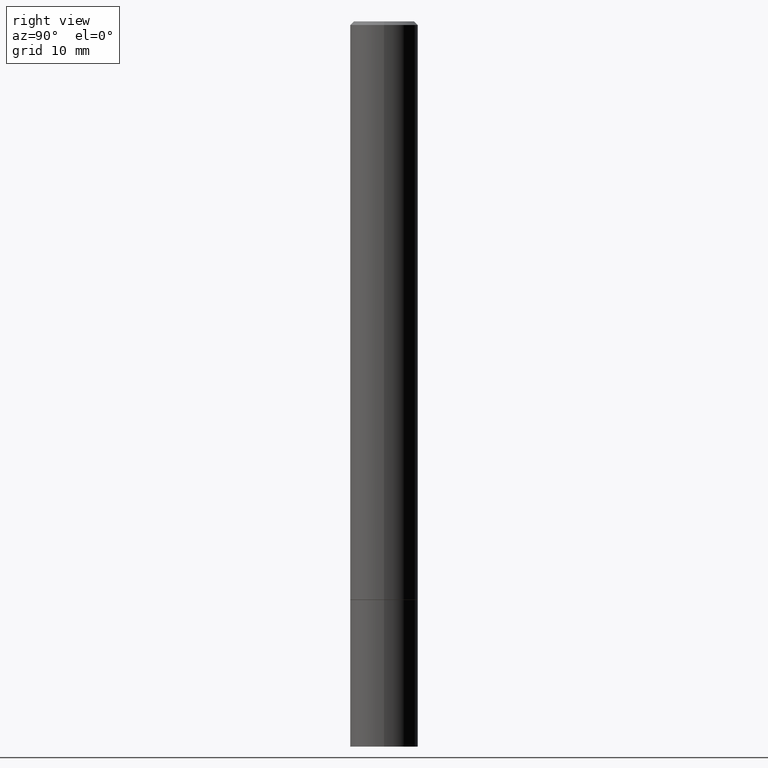
[diagram: clean part render]
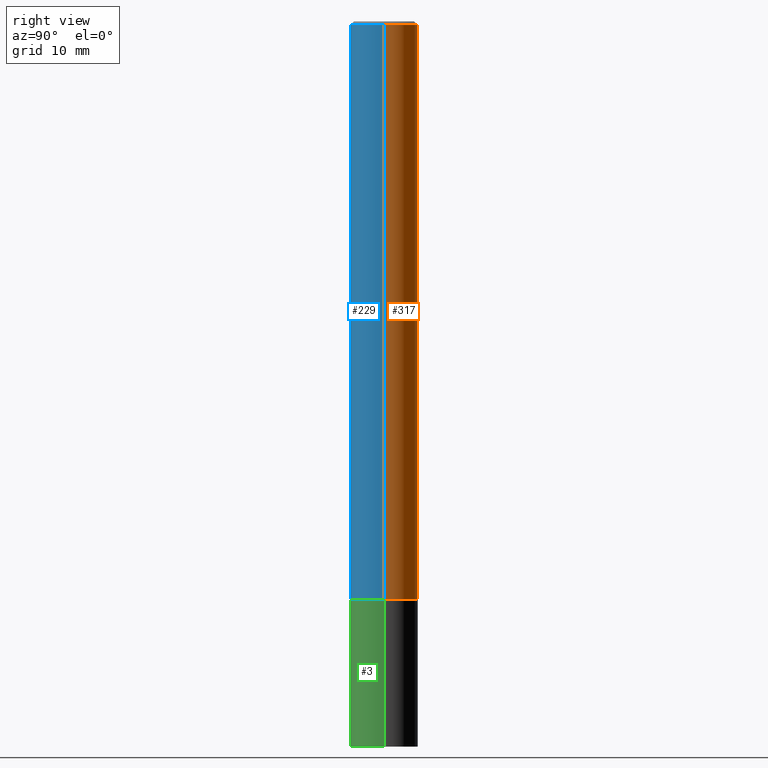
[diagram: same view with three faces highlighted in distinct colors, each labeled with its STEP entity id]
A machine part, right view with three faces highlighted in distinct colors.
Their STEP definitions:

[orange] entity #317 — the highlighted cylindrical surface (edge-blend (fillet) strip) has radius 4.7625 mm, axis along (-0, 0, 1).
#2 = DIRECTION ( 'NONE',  ( -2.445468806185136597E-29, 3.491481338843145583E-15, 1.000000000000000000 ) ) ;
#11 = ORIENTED_EDGE ( 'NONE', *, *, #357, .F. ) ;
#15 = CIRCLE ( 'NONE', #332, 0.1874999999999996669 ) ;
#30 = ORIENTED_EDGE ( 'NONE', *, *, #224, .T. ) ;
#45 = VECTOR ( 'NONE', #324, 39.37007874015748143 ) ;
#59 = ORIENTED_EDGE ( 'NONE', *, *, #185, .F. ) ;
#90 = LINE ( 'NONE', #210, #45 ) ;
#95 = LINE ( 'NONE', #272, #296 ) ;
#98 = DIRECTION ( 'NONE',  ( 1.000000000000000000, -6.982962677686261189E-15, 0.000000000000000000 ) ) ;
#125 = ORIENTED_EDGE ( 'NONE', *, *, #254, .T. ) ;
#126 = FACE_OUTER_BOUND ( 'NONE', #177, .T. ) ;
#155 = VERTEX_POINT ( 'NONE', #216 ) ;
#169 = CARTESIAN_POINT ( 'NONE',  ( -0.1875000000000000278, -4.269814178623634829E-15, -3.188999999999999613 ) ) ;
#171 = DIRECTION ( 'NONE',  ( -2.445468806185136597E-29, 3.491481338843145583E-15, 1.000000000000000000 ) ) ;
#177 = EDGE_LOOP ( 'NONE', ( #125, #30, #59, #11 ) ) ;
#185 = EDGE_CURVE ( 'NONE', #275, #309, #15, .T. ) ;
#186 = AXIS2_PLACEMENT_3D ( 'NONE', #336, #2, #331 ) ;
#189 = CARTESIAN_POINT ( 'NONE',  ( -0.1874999999999996669, 1.239475875289309738E-15, -0.02000000000000004205 ) ) ;
#210 = CARTESIAN_POINT ( 'NONE',  ( -0.1874999999999998335, 1.332267629550186665E-15, -9.223003294227939583E-30 ) ) ;
#216 = CARTESIAN_POINT ( 'NONE',  ( 0.1875000000000000278, -1.244363949163696495E-14, -3.188999999999999613 ) ) ;
#218 = DIRECTION ( 'NONE',  ( -2.445468806185136877E-29, 3.491481338843145188E-15, 1.000000000000000000 ) ) ;
#219 = CARTESIAN_POINT ( 'NONE',  ( 0.1874999999999996669, -1.356173001359023100E-15, -0.02000000000000004205 ) ) ;
#220 = VERTEX_POINT ( 'NONE', #169 ) ;
#224 = EDGE_CURVE ( 'NONE', #220, #309, #90, .T. ) ;
#252 = AXIS2_PLACEMENT_3D ( 'NONE', #365, #308, #98 ) ;
#254 = EDGE_CURVE ( 'NONE', #155, #220, #322, .T. ) ;
#272 = CARTESIAN_POINT ( 'NONE',  ( 0.1874999999999998335, -1.309305502066173825E-15, 9.142831454617371204E-30 ) ) ;
#275 = VERTEX_POINT ( 'NONE', #219 ) ;
#296 = VECTOR ( 'NONE', #218, 39.37007874015748143 ) ;
#308 = DIRECTION ( 'NONE',  ( -2.445468806185136597E-29, 3.491481338843145583E-15, 1.000000000000000000 ) ) ;
#309 = VERTEX_POINT ( 'NONE', #189 ) ;
#317 = ADVANCED_FACE ( 'NONE', ( #126 ), #363, .T. ) ;
#322 = CIRCLE ( 'NONE', #252, 0.1875000000000000278 ) ;
#324 = DIRECTION ( 'NONE',  ( -2.445468806185136877E-29, 3.491481338843145188E-15, 1.000000000000000000 ) ) ;
#331 = DIRECTION ( 'NONE',  ( 1.000000000000000000, -6.982962677686266711E-15, 4.876176775795935793E-29 ) ) ;
#332 = AXIS2_PLACEMENT_3D ( 'NONE', #356, #171, #353 ) ;
#336 = CARTESIAN_POINT ( 'NONE',  ( 0.000000000000000000, 0.000000000000000000, 0.000000000000000000 ) ) ;
#353 = DIRECTION ( 'NONE',  ( 1.000000000000000000, -6.982962677686267499E-15, 0.000000000000000000 ) ) ;
#356 = CARTESIAN_POINT ( 'NONE',  ( 4.890937612370283668E-31, -6.982962677686305168E-17, -0.02000000000000004205 ) ) ;
#357 = EDGE_CURVE ( 'NONE', #155, #275, #95, .T. ) ;
#363 = CYLINDRICAL_SURFACE ( 'NONE', #186, 0.1874999999999998335 ) ;
#365 = CARTESIAN_POINT ( 'NONE',  ( 7.798600022924400186E-29, -1.113433398957079152E-14, -3.188999999999999613 ) ) ;

[blue] entity #229 — the highlighted cylindrical surface (edge-blend (fillet) strip) has radius 4.7625 mm, axis along (-0, 0, 1).
#20 = AXIS2_PLACEMENT_3D ( 'NONE', #300, #88, #47 ) ;
#25 = CARTESIAN_POINT ( 'NONE',  ( 7.798600022924400186E-29, -1.113433398957079152E-14, -3.188999999999999613 ) ) ;
#29 = AXIS2_PLACEMENT_3D ( 'NONE', #25, #122, #273 ) ;
#36 = AXIS2_PLACEMENT_3D ( 'NONE', #123, #302, #305 ) ;
#45 = VECTOR ( 'NONE', #324, 39.37007874015748143 ) ;
#47 = DIRECTION ( 'NONE',  ( 1.000000000000000000, -6.982962677686266711E-15, 4.876176775795935793E-29 ) ) ;
#57 = ORIENTED_EDGE ( 'NONE', *, *, #357, .T. ) ;
#88 = DIRECTION ( 'NONE',  ( -2.445468806185136597E-29, 3.491481338843145583E-15, 1.000000000000000000 ) ) ;
#90 = LINE ( 'NONE', #210, #45 ) ;
#95 = LINE ( 'NONE', #272, #296 ) ;
#104 = EDGE_LOOP ( 'NONE', ( #200, #333, #57, #234 ) ) ;
#107 = CIRCLE ( 'NONE', #36, 0.1874999999999996669 ) ;
#122 = DIRECTION ( 'NONE',  ( -2.445468806185136597E-29, 3.491481338843145583E-15, 1.000000000000000000 ) ) ;
#123 = CARTESIAN_POINT ( 'NONE',  ( 4.890937612370283668E-31, -6.982962677686305168E-17, -0.02000000000000004205 ) ) ;
#155 = VERTEX_POINT ( 'NONE', #216 ) ;
#169 = CARTESIAN_POINT ( 'NONE',  ( -0.1875000000000000278, -4.269814178623634829E-15, -3.188999999999999613 ) ) ;
#178 = CIRCLE ( 'NONE', #29, 0.1875000000000000278 ) ;
#189 = CARTESIAN_POINT ( 'NONE',  ( -0.1874999999999996669, 1.239475875289309738E-15, -0.02000000000000004205 ) ) ;
#200 = ORIENTED_EDGE ( 'NONE', *, *, #224, .F. ) ;
#210 = CARTESIAN_POINT ( 'NONE',  ( -0.1874999999999998335, 1.332267629550186665E-15, -9.223003294227939583E-30 ) ) ;
#216 = CARTESIAN_POINT ( 'NONE',  ( 0.1875000000000000278, -1.244363949163696495E-14, -3.188999999999999613 ) ) ;
#218 = DIRECTION ( 'NONE',  ( -2.445468806185136877E-29, 3.491481338843145188E-15, 1.000000000000000000 ) ) ;
#219 = CARTESIAN_POINT ( 'NONE',  ( 0.1874999999999996669, -1.356173001359023100E-15, -0.02000000000000004205 ) ) ;
#220 = VERTEX_POINT ( 'NONE', #169 ) ;
#224 = EDGE_CURVE ( 'NONE', #220, #309, #90, .T. ) ;
#229 = ADVANCED_FACE ( 'NONE', ( #260 ), #294, .T. ) ;
#234 = ORIENTED_EDGE ( 'NONE', *, *, #348, .F. ) ;
#260 = FACE_OUTER_BOUND ( 'NONE', #104, .T. ) ;
#268 = EDGE_CURVE ( 'NONE', #220, #155, #178, .T. ) ;
#272 = CARTESIAN_POINT ( 'NONE',  ( 0.1874999999999998335, -1.309305502066173825E-15, 9.142831454617371204E-30 ) ) ;
#273 = DIRECTION ( 'NONE',  ( 1.000000000000000000, -6.982962677686261189E-15, 0.000000000000000000 ) ) ;
#275 = VERTEX_POINT ( 'NONE', #219 ) ;
#294 = CYLINDRICAL_SURFACE ( 'NONE', #20, 0.1874999999999998335 ) ;
#296 = VECTOR ( 'NONE', #218, 39.37007874015748143 ) ;
#300 = CARTESIAN_POINT ( 'NONE',  ( 0.000000000000000000, 0.000000000000000000, 0.000000000000000000 ) ) ;
#302 = DIRECTION ( 'NONE',  ( -2.445468806185136597E-29, 3.491481338843145583E-15, 1.000000000000000000 ) ) ;
#305 = DIRECTION ( 'NONE',  ( 1.000000000000000000, -6.982962677686267499E-15, 0.000000000000000000 ) ) ;
#309 = VERTEX_POINT ( 'NONE', #189 ) ;
#324 = DIRECTION ( 'NONE',  ( -2.445468806185136877E-29, 3.491481338843145188E-15, 1.000000000000000000 ) ) ;
#333 = ORIENTED_EDGE ( 'NONE', *, *, #268, .T. ) ;
#348 = EDGE_CURVE ( 'NONE', #309, #275, #107, .T. ) ;
#357 = EDGE_CURVE ( 'NONE', #155, #275, #95, .T. ) ;

[green] entity #3 — the highlighted cylindrical surface (edge-blend (fillet) strip) has radius 4.7625 mm, axis along (-0, 0, 1).
#3 = ADVANCED_FACE ( 'NONE', ( #161 ), #196, .T. ) ;
#4 = VERTEX_POINT ( 'NONE', #55 ) ;
#8 = EDGE_CURVE ( 'NONE', #230, #284, #127, .T. ) ;
#27 = CARTESIAN_POINT ( 'NONE',  ( 0.1875000000000000278, -1.244713097297580796E-14, -3.189999999999999503 ) ) ;
#35 = DIRECTION ( 'NONE',  ( -2.445468806185136877E-29, 3.491481338843145188E-15, 1.000000000000000000 ) ) ;
#40 = CARTESIAN_POINT ( 'NONE',  ( 0.1875000000000000278, -1.527523085743875734E-14, -4.000000000000000000 ) ) ;
#48 = ORIENTED_EDGE ( 'NONE', *, *, #164, .F. ) ;
#52 = LINE ( 'NONE', #103, #173 ) ;
#55 = CARTESIAN_POINT ( 'NONE',  ( -0.1875000000000000278, -1.121960778359091979E-14, -3.189999999999999503 ) ) ;
#63 = VECTOR ( 'NONE', #35, 39.37007874015748143 ) ;
#73 = DIRECTION ( 'NONE',  ( 1.000000000000000000, -6.982962677686261189E-15, 0.000000000000000000 ) ) ;
#79 = CARTESIAN_POINT ( 'NONE',  ( 0.1875000000000000278, -1.309305502066175008E-15, 9.142831454617381013E-30 ) ) ;
#87 = AXIS2_PLACEMENT_3D ( 'NONE', #318, #327, #73 ) ;
#97 = ORIENTED_EDGE ( 'NONE', *, *, #264, .T. ) ;
#103 = CARTESIAN_POINT ( 'NONE',  ( -0.1875000000000000278, 1.332267629550188046E-15, -9.223003294227947991E-30 ) ) ;
#118 = AXIS2_PLACEMENT_3D ( 'NONE', #152, #183, #271 ) ;
#127 = LINE ( 'NONE', #79, #63 ) ;
#149 = CIRCLE ( 'NONE', #87, 0.1875000000000000278 ) ;
#152 = CARTESIAN_POINT ( 'NONE',  ( 9.781875224740546387E-29, -1.396592535537258233E-14, -4.000000000000000000 ) ) ;
#161 = FACE_OUTER_BOUND ( 'NONE', #258, .T. ) ;
#164 = EDGE_CURVE ( 'NONE', #4, #284, #149, .T. ) ;
#165 = AXIS2_PLACEMENT_3D ( 'NONE', #231, #282, #344 ) ;
#173 = VECTOR ( 'NONE', #221, 39.37007874015748143 ) ;
#183 = DIRECTION ( 'NONE',  ( -2.445468806185136597E-29, 3.491481338843145583E-15, 1.000000000000000000 ) ) ;
#194 = ORIENTED_EDGE ( 'NONE', *, *, #8, .T. ) ;
#196 = CYLINDRICAL_SURFACE ( 'NONE', #165, 0.1875000000000000278 ) ;
#221 = DIRECTION ( 'NONE',  ( -2.445468806185136877E-29, 3.491481338843145188E-15, 1.000000000000000000 ) ) ;
#230 = VERTEX_POINT ( 'NONE', #40 ) ;
#231 = CARTESIAN_POINT ( 'NONE',  ( 0.000000000000000000, 0.000000000000000000, 0.000000000000000000 ) ) ;
#241 = CIRCLE ( 'NONE', #118, 0.1875000000000000278 ) ;
#249 = VERTEX_POINT ( 'NONE', #335 ) ;
#258 = EDGE_LOOP ( 'NONE', ( #340, #97, #194, #48 ) ) ;
#264 = EDGE_CURVE ( 'NONE', #249, #230, #241, .T. ) ;
#271 = DIRECTION ( 'NONE',  ( 1.000000000000000000, -6.982962677686261189E-15, 0.000000000000000000 ) ) ;
#282 = DIRECTION ( 'NONE',  ( -2.445468806185136597E-29, 3.491481338843145583E-15, 1.000000000000000000 ) ) ;
#284 = VERTEX_POINT ( 'NONE', #27 ) ;
#287 = EDGE_CURVE ( 'NONE', #249, #4, #52, .T. ) ;
#318 = CARTESIAN_POINT ( 'NONE',  ( 7.801045491730584668E-29, -1.113782547090963453E-14, -3.189999999999999503 ) ) ;
#327 = DIRECTION ( 'NONE',  ( -2.445468806185136597E-29, 3.491481338843145583E-15, 1.000000000000000000 ) ) ;
#335 = CARTESIAN_POINT ( 'NONE',  ( -0.1875000000000000278, -1.121960778359091979E-14, -4.000000000000000000 ) ) ;
#340 = ORIENTED_EDGE ( 'NONE', *, *, #287, .F. ) ;
#344 = DIRECTION ( 'NONE',  ( 1.000000000000000000, -6.982962677686265922E-15, 4.876176775795935793E-29 ) ) ;